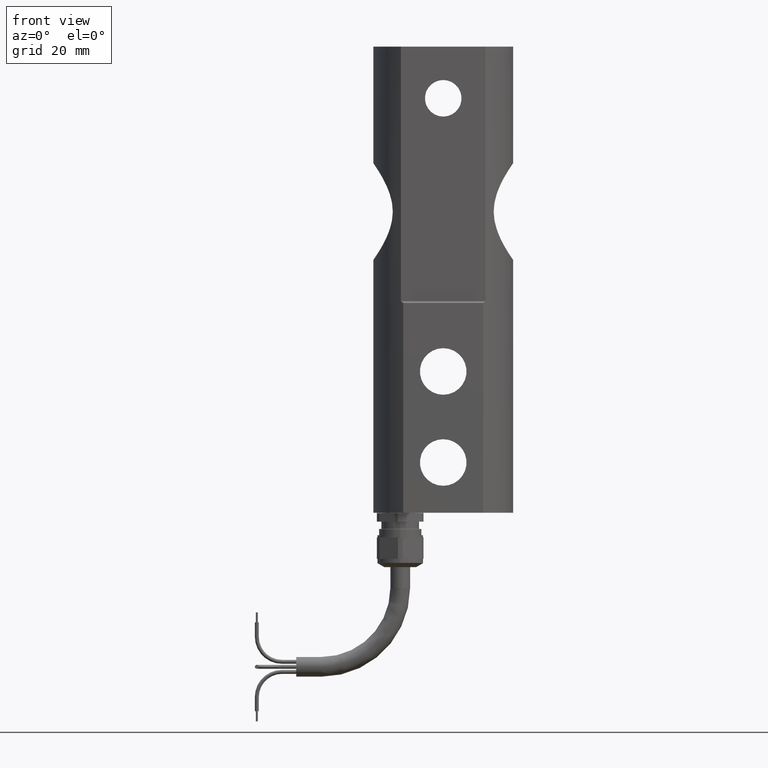
[diagram: clean part render]
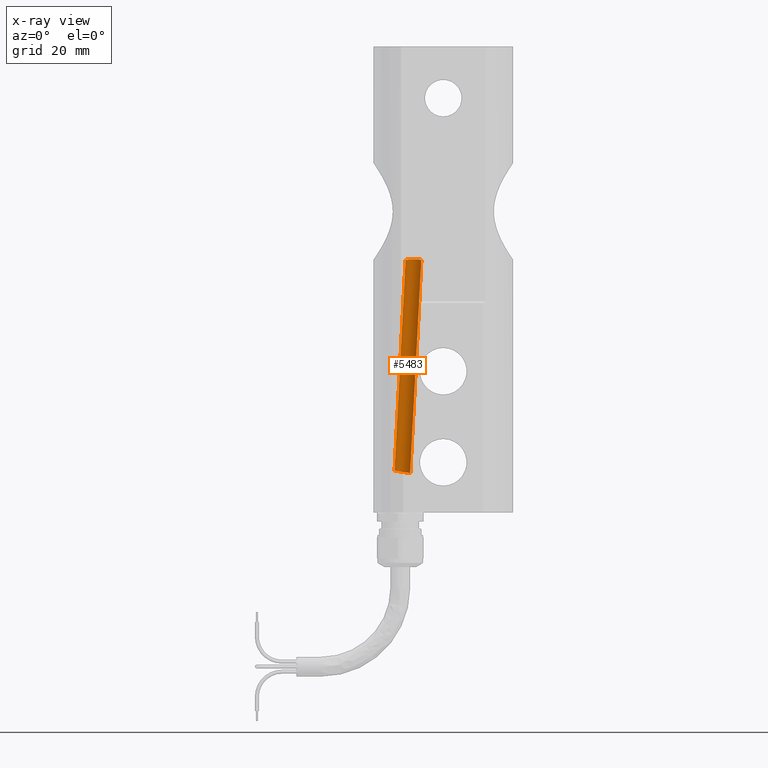
[diagram: x-ray — body ghosted, one internal face saturated and labeled with its STEP entity id]
A machine part, front view, then the same camera in x-ray: the body is ghosted and one INTERNAL B-rep face — a face not visible from any outside direction — is saturated and labeled: STEP entity #5483.
In plain terms, the highlighted cylindrical surface (edge-blend (fillet) strip) has radius 2.2 mm, axis along (-0.0523, -0, -0.9986).
Its self-contained STEP definition (entity closure, byte-faithful):
#3 = CARTESIAN_POINT ( 'NONE',  ( -0.2489973669103383302, 0.03848531429173741858, 0.2179045024213434878 ) ) ;
#28 = VECTOR ( 'NONE', #817, 39.37007874015748143 ) ;
#413 = AXIS2_PLACEMENT_3D ( 'NONE', #3236, #680, #1366 ) ;
#485 = CARTESIAN_POINT ( 'NONE',  ( -0.4048524533146392601, 0.03840971967716680369, 0.2178991509962686646 ) ) ;
#514 = CARTESIAN_POINT ( 'NONE',  ( -0.5262547105786685719, 0.03839393863897604814, -2.098481663015515863 ) ) ;
#569 = CARTESIAN_POINT ( 'NONE',  ( -0.3841162832213863010, 0.06522748772227451863, 0.2205375570344520753 ) ) ;
#596 = EDGE_CURVE ( 'NONE', #7092, #2240, #2964, .T. ) ;
#633 = CARTESIAN_POINT ( 'NONE',  ( -0.4270630554083834074, 0.08392751290266362019, -2.116137355925495012 ) ) ;
#680 = DIRECTION ( 'NONE',  ( -0.05233595624294449383, -0.000000000000000000, -0.9986295347545739443 ) ) ;
#739 = CARTESIAN_POINT ( 'NONE',  ( -0.3629440585294196886, 1.061509030966183414E-17, -2.124695013148791389 ) ) ;
#817 = DIRECTION ( 'NONE',  ( -0.05233595624294449383, -0.000000000000000000, -0.9986295347545738332 ) ) ;
#829 = VECTOR ( 'NONE', #2406, 39.37007874015748143 ) ;
#1174 = CARTESIAN_POINT ( 'NONE',  ( -0.4137114457378809340, 0.005663102858646976157, 0.2165354330708659236 ) ) ;
#1177 = CARTESIAN_POINT ( 'NONE',  ( -0.2408056559587333778, 0.01137705277536260780, 0.2166282333329286325 ) ) ;
#1202 = CARTESIAN_POINT ( 'NONE',  ( -0.4714915273052615041, 0.08380321279078245533, -2.109156317773102973 ) ) ;
#1211 = ORIENTED_EDGE ( 'NONE', *, *, #5768, .T. ) ;
#1215 = CARTESIAN_POINT ( 'NONE',  ( -0.3154938369576886226, 0.08664233954332570264, 0.2236450252177909770 ) ) ;
#1348 = LINE ( 'NONE', #5589, #28 ) ;
#1366 = DIRECTION ( 'NONE',  ( -0.9986295347545737222, 0.000000000000000000, 0.05233595624294545140 ) ) ;
#1725 = CARTESIAN_POINT ( 'NONE',  ( -0.3651894798915069074, 0.02271950691169237480, -2.124420515135321264 ) ) ;
#1737 = CARTESIAN_POINT ( 'NONE',  ( -0.2402453700532022618, -9.112654007937890012E-20, 0.2165354330708659514 ) ) ;
#1771 = CARTESIAN_POINT ( 'NONE',  ( -0.4021160958452645318, 0.04346984508651576679, 0.2182952508856522700 ) ) ;
#1816 = CARTESIAN_POINT ( 'NONE',  ( -0.3382414883105527847, 0.08601800131637631075, 0.2235410235136990886 ) ) ;
#1841 = CARTESIAN_POINT ( 'NONE',  ( -0.5349298641081567940, 5.919848269899719783E-23, -2.096449776922562069 ) ) ;
#1927 = CARTESIAN_POINT ( 'NONE',  ( -0.5349298641081567940, 5.919848269899719783E-23, -2.096449776922562069 ) ) ;
#2093 = B_SPLINE_CURVE_WITH_KNOTS ( 'NONE', 3,
 ( #1841, #6563, #3670, #514, #3036, #3554, #6054, #6122, #7879, #4884, #3003, #5405, #1202, #7175, #2960, #4767, #4718, #633, #3081, #5362, #6604, #7221, #3636, #4111, #2367, #5446, #2403, #1725, #7265, #6687 ),
 .UNSPECIFIED., .F., .F.,
 ( 4, 2, 2, 2, 2, 2, 2, 2, 2, 2, 2, 2, 2, 2, 4 ),
 ( 0.008995891186636215814, 0.009864823484111984869, 0.01029928963284987113, 0.01073375578158775566, 0.01116822193032564019, 0.01160268807906352645, 0.01203715422780141098, 0.01247162037653929550, 0.01290608652527718003, 0.01334055267401506456, 0.01377501882275295082, 0.01420948497149083535, 0.01464395112022871988, 0.01507841726896660614, 0.01594734956644237520 ),
 .UNSPECIFIED. ) ;
#2240 = VERTEX_POINT ( 'NONE', #739 ) ;
#2294 = CARTESIAN_POINT ( 'NONE',  ( -0.2831944095879528334, 0.07578108891446322382, 0.2219475999201240002 ) ) ;
#2299 = CARTESIAN_POINT ( 'NONE',  ( -0.2402453700532022618, -9.112654007937890012E-20, 0.2165354330708659514 ) ) ;
#2367 = CARTESIAN_POINT ( 'NONE',  ( -0.3806685277368188070, 0.05292444769205896515, -2.122468048858757506 ) ) ;
#2403 = CARTESIAN_POINT ( 'NONE',  ( -0.3717319030063487850, 0.03853163534045333377, -2.123602439671921971 ) ) ;
#2406 = DIRECTION ( 'NONE',  ( -0.05233595624294449383, -0.000000000000000000, -0.9986295347545738332 ) ) ;
#2413 = CARTESIAN_POINT ( 'NONE',  ( -0.4108930135561053576, 0.02253532916235580913, 0.2169842683893801749 ) ) ;
#2737 = EDGE_CURVE ( 'NONE', #5321, #7092, #3113, .T. ) ;
#2930 = CARTESIAN_POINT ( 'NONE',  ( -0.2402453700532023173, 0.005736662990273322556, 0.2165354330708660069 ) ) ;
#2960 = CARTESIAN_POINT ( 'NONE',  ( -0.4549520811883657756, 0.08659797795238802220, -2.111884897817768447 ) ) ;
#2964 = LINE ( 'NONE', #6648, #829 ) ;
#2976 = CARTESIAN_POINT ( 'NONE',  ( -0.3703334834728361225, 0.07506582369334974247, 0.2218536193001805212 ) ) ;
#3003 = CARTESIAN_POINT ( 'NONE',  ( -0.4872897721871625731, 0.07778374478639485390, -2.106372566364483223 ) ) ;
#3036 = CARTESIAN_POINT ( 'NONE',  ( -0.5235769443804628720, 0.04345525272085355023, -2.099086463891118193 ) ) ;
#3081 = CARTESIAN_POINT ( 'NONE',  ( -0.4215882689301345132, 0.08227996537640569485, -2.116927427477837576 ) ) ;
#3113 = B_SPLINE_CURVE_WITH_KNOTS ( 'NONE', 3,
 ( #5981, #1174, #7924, #2413, #5498, #485, #1771, #4781, #6066, #569, #7239, #2976, #4248, #6660, #5459, #1816, #7927, #1215, #6138, #2294, #4128, #7852, #4168, #5984, #3, #4738, #7279, #1177, #2930, #1737 ),
 .UNSPECIFIED., .F., .F.,
 ( 4, 2, 2, 2, 2, 2, 2, 2, 2, 2, 2, 2, 2, 2, 4 ),
 ( 0.006942218478295785790, 0.007376189500065213206, 0.007810160521834640622, 0.008244131543604068038, 0.008678102565373494587, 0.009112073587142922870, 0.009546044608912349419, 0.009980015630681777702, 0.01041398665245120425, 0.01128192869599005388, 0.01214987073952890351, 0.01258384176129832832, 0.01301781278306775314, 0.01345178380483717621, 0.01388575482660660103 ),
 .UNSPECIFIED. ) ;
#3236 = CARTESIAN_POINT ( 'NONE',  ( -0.4724409448819373303, 0.000000000000000000, -2.559055118110236560 ) ) ;
#3339 = ORIENTED_EDGE ( 'NONE', *, *, #596, .F. ) ;
#3554 = CARTESIAN_POINT ( 'NONE',  ( -0.5173293654475102921, 0.05288519016337301509, -2.100449501850037315 ) ) ;
#3636 = CARTESIAN_POINT ( 'NONE',  ( -0.3923442533002433619, 0.06541260976602973620, -2.120948021695234775 ) ) ;
#3670 = CARTESIAN_POINT ( 'NONE',  ( -0.5326727398707310490, 0.02275322996632844763, -2.097005122584701287 ) ) ;
#3879 = CYLINDRICAL_SURFACE ( 'NONE', #413, 0.08661417322834613630 ) ;
#4111 = CARTESIAN_POINT ( 'NONE',  ( -0.3843150257957352878, 0.05737897218396119381, -2.121998838533473375 ) ) ;
#4128 = CARTESIAN_POINT ( 'NONE',  ( -0.2735346304022241437, 0.06932968509230616472, 0.2210152366926388112 ) ) ;
#4168 = CARTESIAN_POINT ( 'NONE',  ( -0.2579217975808638652, 0.05288934086590296735, 0.2191523326998599808 ) ) ;
#4248 = CARTESIAN_POINT ( 'NONE',  ( -0.3652734797133159184, 0.07777295597431178875, 0.2222518002943313364 ) ) ;
#4390 = VERTEX_POINT ( 'NONE', #1927 ) ;
#4433 = FACE_OUTER_BOUND ( 'NONE', #6842, .T. ) ;
#4718 = CARTESIAN_POINT ( 'NONE',  ( -0.4380582076339685216, 0.08608863862907265019, -2.114507016157927577 ) ) ;
#4732 = CARTESIAN_POINT ( 'NONE',  ( -0.4137114457378809340, -1.776427797513048512E-24, 0.2165354330708659236 ) ) ;
#4738 = CARTESIAN_POINT ( 'NONE',  ( -0.2446620073409459528, 0.02798282197321153367, 0.2172465014765947444 ) ) ;
#4767 = CARTESIAN_POINT ( 'NONE',  ( -0.4436352831098406280, 0.08662969727400546271, -2.113658926928969617 ) ) ;
#4781 = CARTESIAN_POINT ( 'NONE',  ( -0.3958083351891011348, 0.05282312330339354600, 0.2191460315899108335 ) ) ;
#4884 = CARTESIAN_POINT ( 'NONE',  ( -0.4922025233706766034, 0.07512521007001343731, -2.105465024000677587 ) ) ;
#5165 = ORIENTED_EDGE ( 'NONE', *, *, #7964, .T. ) ;
#5187 = ORIENTED_EDGE ( 'NONE', *, *, #2737, .F. ) ;
#5321 = VERTEX_POINT ( 'NONE', #4732 ) ;
#5362 = CARTESIAN_POINT ( 'NONE',  ( -0.4111589670630883542, 0.07797324771366039020, -2.118399924325996775 ) ) ;
#5405 = CARTESIAN_POINT ( 'NONE',  ( -0.4769129656054257316, 0.08213832770903067848, -2.108222335074071641 ) ) ;
#5446 = CARTESIAN_POINT ( 'NONE',  ( -0.3743962198472558511, 0.04351582218655076356, -2.123267331725712914 ) ) ;
#5459 = CARTESIAN_POINT ( 'NONE',  ( -0.3493605938985235304, 0.08377789222521844770, 0.2231785479720581888 ) ) ;
#5483 = ADVANCED_FACE ( 'NONE', ( #4433 ), #3879, .F. ) ;
#5498 = CARTESIAN_POINT ( 'NONE',  ( -0.4092360836245623190, 0.02793354064797997846, 0.2172440365667359929 ) ) ;
#5589 = CARTESIAN_POINT ( 'NONE',  ( -0.5589364163961126897, 0.000000000000000000, -2.554522082530138682 ) ) ;
#5768 = EDGE_CURVE ( 'NONE', #4390, #2240, #2093, .T. ) ;
#5981 = CARTESIAN_POINT ( 'NONE',  ( -0.4137114457378809340, -1.776427797513048512E-24, 0.2165354330708659236 ) ) ;
#5984 = CARTESIAN_POINT ( 'NONE',  ( -0.2516503711521924092, 0.04346535024010159121, 0.2182945659312316711 ) ) ;
#6054 = CARTESIAN_POINT ( 'NONE',  ( -0.5137896536387519530, 0.05723380129909261260, -2.101201339963266523 ) ) ;
#6066 = CARTESIAN_POINT ( 'NONE',  ( -0.3922144105767336741, 0.05717808620764845001, 0.2196044459188540854 ) ) ;
#6122 = CARTESIAN_POINT ( 'NONE',  ( -0.5058899810704873268, 0.06521302235944084758, -2.102818400837435764 ) ) ;
#6138 = CARTESIAN_POINT ( 'NONE',  ( -0.3040648949945123358, 0.08439350460747616078, 0.2232603310796351104 ) ) ;
#6563 = CARTESIAN_POINT ( 'NONE',  ( -0.5349298641081567940, 0.01131914448402831369, -2.096449776922561625 ) ) ;
#6604 = CARTESIAN_POINT ( 'NONE',  ( -0.4061969508257416428, 0.07532829146821042043, -2.119083966786465822 ) ) ;
#6648 = CARTESIAN_POINT ( 'NONE',  ( -0.3859454733677619709, 1.060717700048885238E-17, -2.563588153690333993 ) ) ;
#6660 = CARTESIAN_POINT ( 'NONE',  ( -0.3547670906323090456, 0.08213015677877069654, 0.2229147866439693537 ) ) ;
#6687 = CARTESIAN_POINT ( 'NONE',  ( -0.3629440585294196886, 1.061509030966183414E-17, -2.124695013148791389 ) ) ;
#6842 = EDGE_LOOP ( 'NONE', ( #3339, #5187, #5165, #1211 ) ) ;
#7092 = VERTEX_POINT ( 'NONE', #2299 ) ;
#7175 = CARTESIAN_POINT ( 'NONE',  ( -0.4605462288373546875, 0.08602166941000267963, -2.110981487243351662 ) ) ;
#7221 = CARTESIAN_POINT ( 'NONE',  ( -0.3967821737970434470, 0.06905065671033745744, -2.120359136581396076 ) ) ;
#7239 = CARTESIAN_POINT ( 'NONE',  ( -0.3797221855137815072, 0.06880858915362624006, 0.2209988462773559426 ) ) ;
#7265 = CARTESIAN_POINT ( 'NONE',  ( -0.3629440585294196886, 0.01143198007815384408, -2.124695013148791833 ) ) ;
#7279 = CARTESIAN_POINT ( 'NONE',  ( -0.2430004723602101069, 0.02247097272139268742, 0.2169816675582042220 ) ) ;
#7852 = CARTESIAN_POINT ( 'NONE',  ( -0.2615707898944865661, 0.05734691085334073929, 0.2196229739263728664 ) ) ;
#7879 = CARTESIAN_POINT ( 'NONE',  ( -0.5014870395896483535, 0.06886127178394239878, -2.103691430333814782 ) ) ;
#7924 = CARTESIAN_POINT ( 'NONE',  ( -0.4131369090739311911, 0.01141731764114995926, 0.2166289707225813599 ) ) ;
#7927 = CARTESIAN_POINT ( 'NONE',  ( -0.3324891819855585462, 0.08659967964193832080, 0.2236379790647670118 ) ) ;
#7964 = EDGE_CURVE ( 'NONE', #5321, #4390, #1348, .T. ) ;